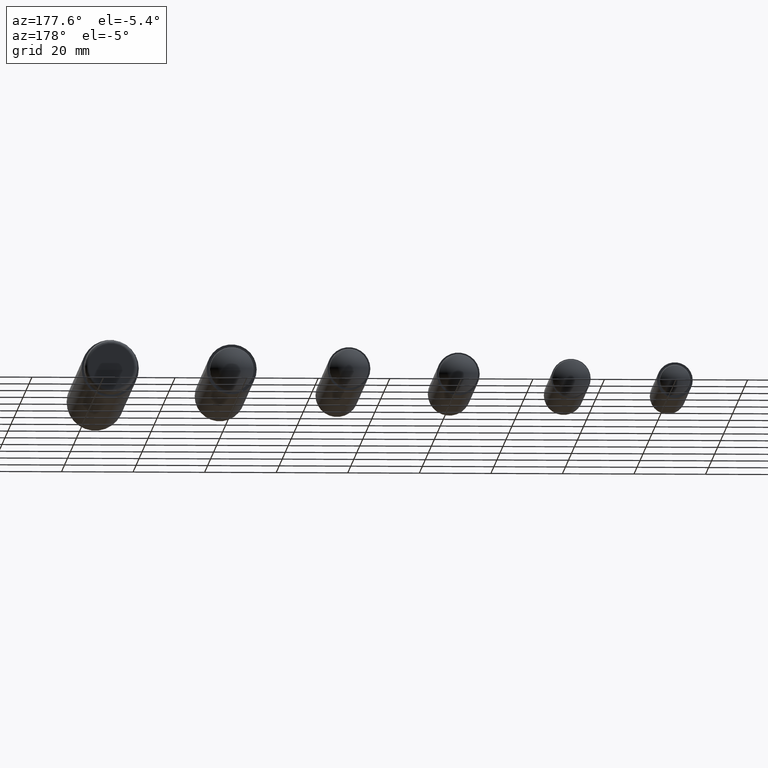
[diagram: clean part render]
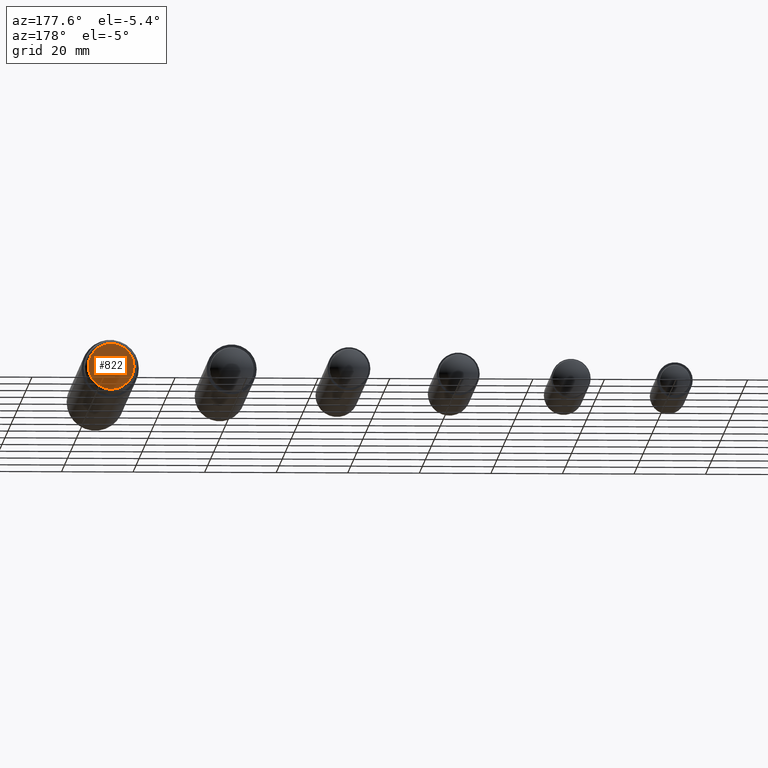
[diagram: same view with one face highlighted and labeled with its STEP entity id]
A machine part, auxiliary view. The second image highlights one B-rep face of the part: STEP entity #822.
In plain terms, the highlighted planar face has unit normal (0, 1, 0).
Its self-contained STEP definition (entity closure, byte-faithful):
#194=PLANE('',#989);
#312=FACE_OUTER_BOUND('',#429,.T.);
#429=EDGE_LOOP('',(#729));
#492=CIRCLE('',#986,6.4);
#552=VERTEX_POINT('',#1548);
#612=EDGE_CURVE('',#552,#552,#492,.T.);
#729=ORIENTED_EDGE('',*,*,#612,.F.);
#822=ADVANCED_FACE('',(#312),#194,.T.);
#986=AXIS2_PLACEMENT_3D('',#1549,#1302,#1303);
#989=AXIS2_PLACEMENT_3D('',#1553,#1308,#1309);
#1302=DIRECTION('center_axis',(3.94886110745473E-16,-1.,0.));
#1303=DIRECTION('ref_axis',(1.,3.94886110745473E-16,0.));
#1308=DIRECTION('center_axis',(-3.94886110745473E-16,1.,0.));
#1309=DIRECTION('ref_axis',(0.,0.,1.));
#1548=CARTESIAN_POINT('',(-6.4,6.50000000000001,-7.83773951454306E-16));
#1549=CARTESIAN_POINT('Origin',(-2.56675971984558E-15,6.50000000000001,
0.));
#1553=CARTESIAN_POINT('Origin',(-4.00422481340652E-15,6.50000000000001,
0.));